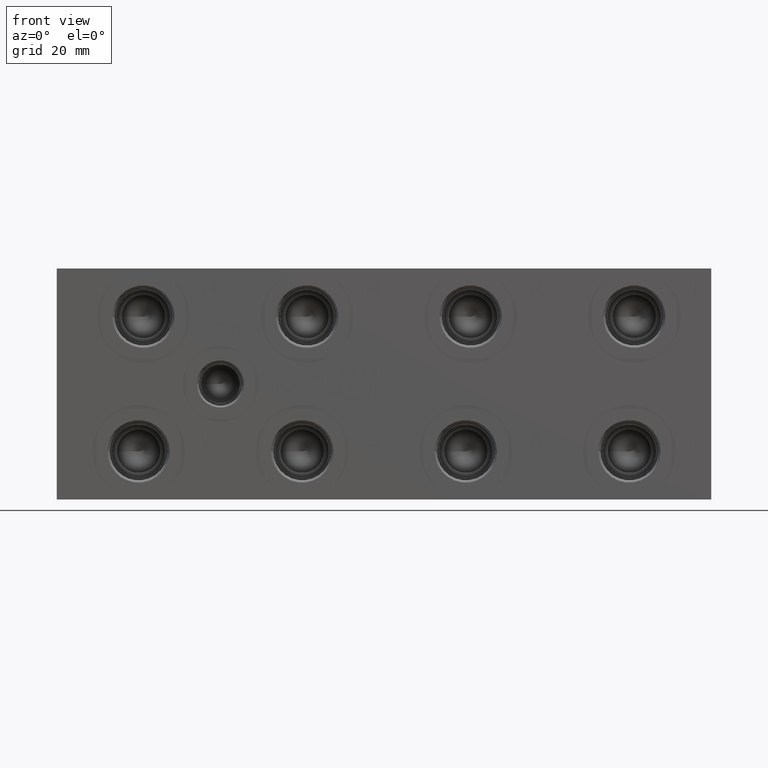
[diagram: clean part render]
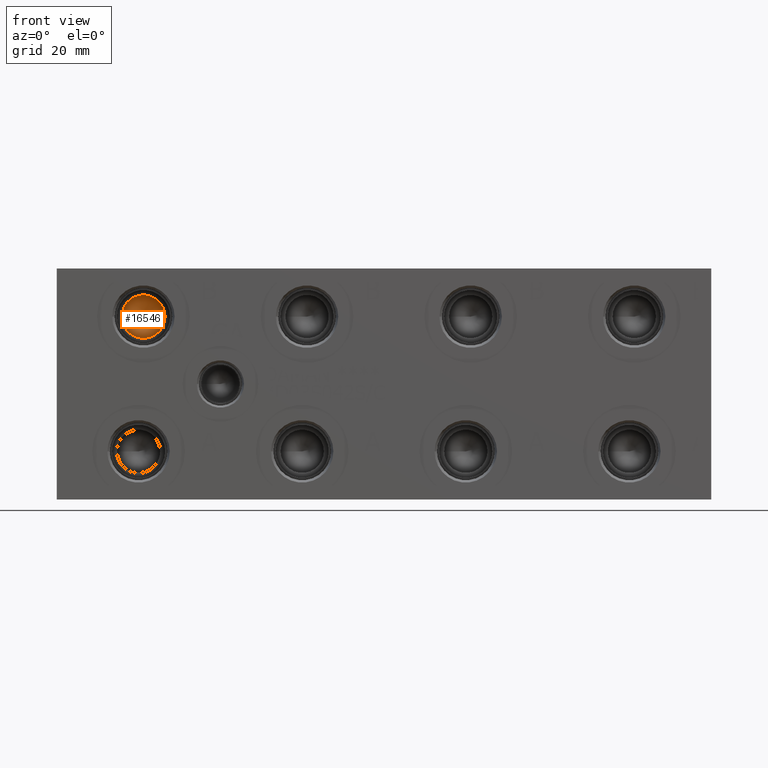
[diagram: same view with one face highlighted and labeled with its STEP entity id]
A machine part, front view. The second image highlights one B-rep face of the part: STEP entity #16546.
In plain terms, the highlighted conical surface has half-angle 60 deg.
Its self-contained STEP definition (entity closure, byte-faithful):
#46=CONICAL_SURFACE('',#17403,3.57505,1.0471975511966);
#422=CIRCLE('',#17404,7.1501);
#423=CIRCLE('',#17405,7.1501);
#2186=FACE_OUTER_BOUND('',#3147,.T.);
#3147=EDGE_LOOP('',(#13851,#13852,#13853,#13854));
#4679=LINE('',#28106,#6104);
#6104=VECTOR('',#20476,3.57505);
#7517=VERTEX_POINT('',#28102);
#7518=VERTEX_POINT('',#28103);
#7519=VERTEX_POINT('',#28105);
#9728=EDGE_CURVE('',#7517,#7518,#422,.T.);
#9729=EDGE_CURVE('',#7518,#7519,#4679,.T.);
#9730=EDGE_CURVE('',#7518,#7517,#423,.T.);
#13851=ORIENTED_EDGE('',*,*,#9728,.T.);
#13852=ORIENTED_EDGE('',*,*,#9729,.T.);
#13853=ORIENTED_EDGE('',*,*,#9729,.F.);
#13854=ORIENTED_EDGE('',*,*,#9730,.T.);
#16546=ADVANCED_FACE('',(#2186),#46,.F.);
#17403=AXIS2_PLACEMENT_3D('',#28101,#20472,#20473);
#17404=AXIS2_PLACEMENT_3D('',#28104,#20474,#20475);
#17405=AXIS2_PLACEMENT_3D('',#28107,#20477,#20478);
#20472=DIRECTION('center_axis',(0.,-1.,0.));
#20473=DIRECTION('ref_axis',(1.,0.,0.));
#20474=DIRECTION('center_axis',(0.,-1.,0.));
#20475=DIRECTION('ref_axis',(1.,0.,0.));
#20476=DIRECTION('',(0.866025403784439,0.5,1.06057523872491E-16));
#20477=DIRECTION('center_axis',(0.,-1.,0.));
#20478=DIRECTION('ref_axis',(1.,0.,0.));
#28101=CARTESIAN_POINT('Origin',(28.575,25.1926260798664,60.325));
#28102=CARTESIAN_POINT('',(35.7251,23.12857,60.325));
#28103=CARTESIAN_POINT('',(21.4249,23.12857,60.325));
#28104=CARTESIAN_POINT('Origin',(28.575,23.12857,60.325));
#28105=CARTESIAN_POINT('',(28.575,27.2566821597327,60.325));
#28106=CARTESIAN_POINT('',(24.99995,25.1926260798664,60.325));
#28107=CARTESIAN_POINT('Origin',(28.575,23.12857,60.325));